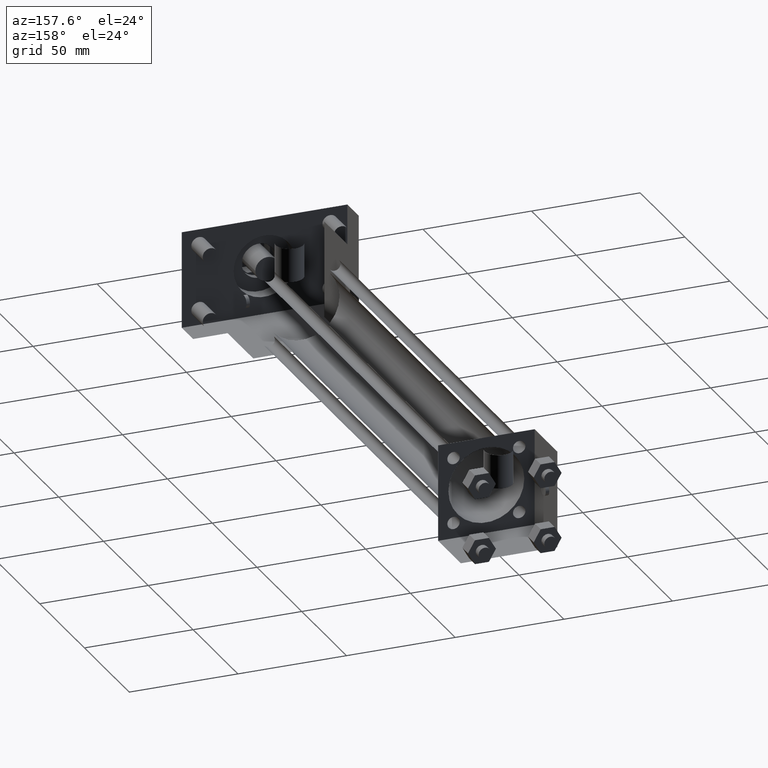
[diagram: clean part render]
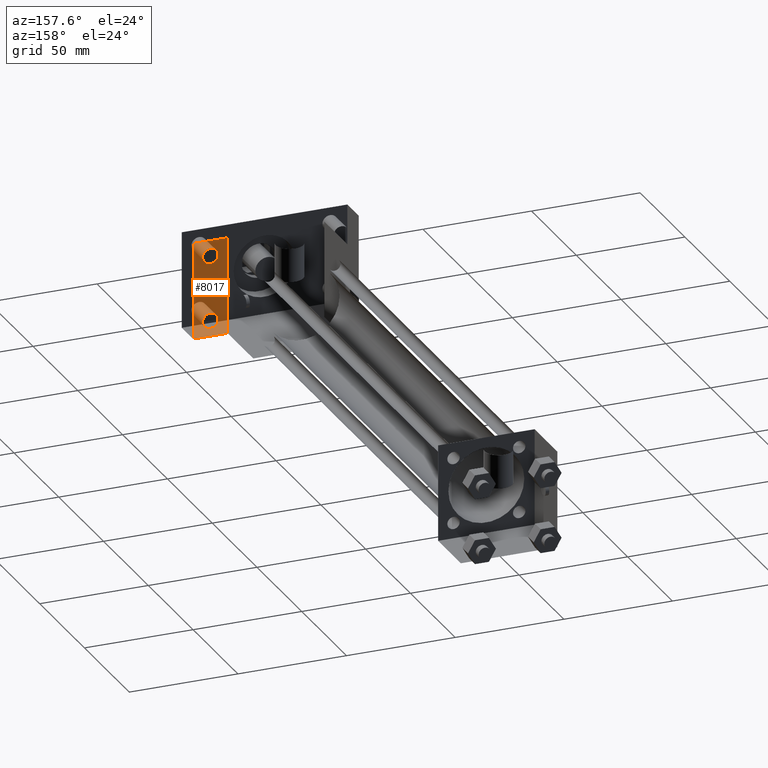
[diagram: same view with one face highlighted and labeled with its STEP entity id]
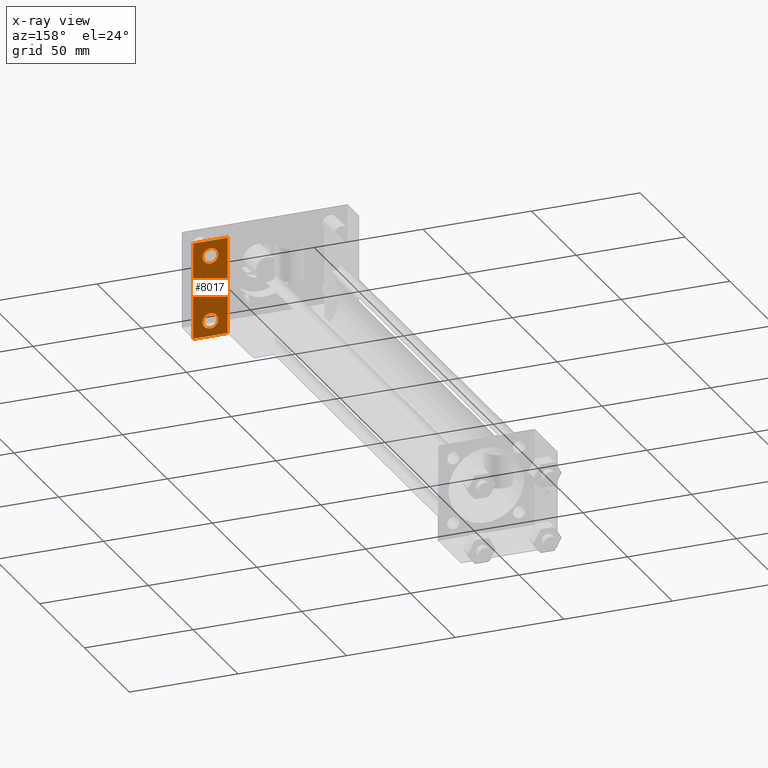
[diagram: x-ray of the same camera — body ghosted, the highlighted face saturated]
A machine part, auxiliary view. The second image highlights one B-rep face of the part: STEP entity #8017.
The next image is the same camera in x-ray: the body ghosted, the highlighted face saturated — about 0% of this face is hidden behind the body in this view.
In plain terms, the highlighted planar face has unit normal (0, -1, 0).
Its self-contained STEP definition (entity closure, byte-faithful):
#455=FACE_OUTER_BOUND('',#458,.T.);
#456=FACE_BOUND('',#459,.T.);
#457=FACE_BOUND('',#460,.T.);
#458=EDGE_LOOP('',(#461));
#459=EDGE_LOOP('',(#470));
#460=EDGE_LOOP('',(#479,#480,#481,#482));
#461=ORIENTED_EDGE('',*,*,#462,.T.);
#462=EDGE_CURVE('',#468,#468,#463,.T.);
#463=CIRCLE('',#464,3.568700000E+000);
#464=AXIS2_PLACEMENT_3D('',#465,#466,#467);
#465=CARTESIAN_POINT('',(3.016250000E+001,2.857500000E+001,-1.511300000E+001));
#466=DIRECTION('',(0.0E+000,-1.0E+000,0.0E+000));
#467=DIRECTION('',(0.0E+000,0.0E+000,-1.0E+000));
#468=VERTEX_POINT('',#469);
#469=CARTESIAN_POINT('',(3.016250000E+001,2.857500000E+001,-1.868170000E+001));
#470=ORIENTED_EDGE('',*,*,#471,.T.);
#471=EDGE_CURVE('',#477,#477,#472,.T.);
#472=CIRCLE('',#473,3.568700000E+000);
#473=AXIS2_PLACEMENT_3D('',#474,#475,#476);
#474=CARTESIAN_POINT('',(3.016250000E+001,2.857500000E+001,1.511300000E+001));
#475=DIRECTION('',(0.0E+000,-1.0E+000,0.0E+000));
#476=DIRECTION('',(0.0E+000,0.0E+000,-1.0E+000));
#477=VERTEX_POINT('',#478);
#478=CARTESIAN_POINT('',(3.016250000E+001,2.857500000E+001,1.154430000E+001));
#479=ORIENTED_EDGE('',*,*,#483,.F.);
#480=ORIENTED_EDGE('',*,*,#492,.T.);
#481=ORIENTED_EDGE('',*,*,#499,.F.);
#482=ORIENTED_EDGE('',*,*,#506,.F.);
#483=EDGE_CURVE('',#488,#489,#484,.T.);
#484=LINE('',#485,#486);
#485=CARTESIAN_POINT('',(-3.810000000E+001,2.857500000E+001,-2.222500000E+001));
#486=VECTOR('',#487,1.0E+000);
#487=DIRECTION('',(1.0E+000,0.0E+000,0.0E+000));
#488=VERTEX_POINT('',#490);
#489=VERTEX_POINT('',#491);
#490=CARTESIAN_POINT('',(2.222500000E+001,2.857500000E+001,-2.222500000E+001));
#491=CARTESIAN_POINT('',(3.810000000E+001,2.857500000E+001,-2.222500000E+001));
#492=EDGE_CURVE('',#488,#497,#493,.T.);
#493=LINE('',#494,#495);
#494=CARTESIAN_POINT('',(2.222500000E+001,2.857500000E+001,-2.222500000E+001));
#495=VECTOR('',#496,1.0E+000);
#496=DIRECTION('',(0.0E+000,0.0E+000,1.0E+000));
#497=VERTEX_POINT('',#498);
#498=CARTESIAN_POINT('',(2.222500000E+001,2.857500000E+001,2.222500000E+001));
#499=EDGE_CURVE('',#504,#497,#500,.T.);
#500=LINE('',#501,#502);
#501=CARTESIAN_POINT('',(3.810000000E+001,2.857500000E+001,2.222500000E+001));
#502=VECTOR('',#503,1.0E+000);
#503=DIRECTION('',(-1.0E+000,0.0E+000,0.0E+000));
#504=VERTEX_POINT('',#505);
#505=CARTESIAN_POINT('',(3.810000000E+001,2.857500000E+001,2.222500000E+001));
#506=EDGE_CURVE('',#489,#504,#507,.T.);
#507=LINE('',#508,#509);
#508=CARTESIAN_POINT('',(3.810000000E+001,2.857500000E+001,-2.222500000E+001));
#509=VECTOR('',#510,1.0E+000);
#510=DIRECTION('',(0.0E+000,0.0E+000,1.0E+000));
#511=PLANE('',#512);
#512=AXIS2_PLACEMENT_3D('',#513,#514,#515);
#513=CARTESIAN_POINT('',(3.810000000E+001,2.857500000E+001,-2.222500000E+001));
#514=DIRECTION('',(0.0E+000,-1.0E+000,0.0E+000));
#515=DIRECTION('',(0.0E+000,0.0E+000,-1.0E+000));
#8017=ADVANCED_FACE('',(#455,#456,#457),#511,.F.);